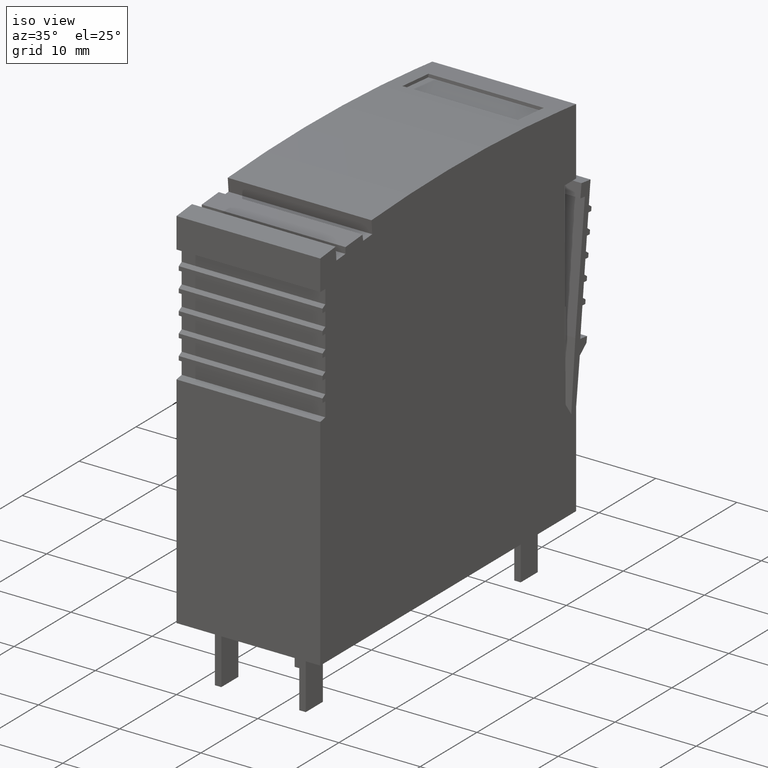
[diagram: clean part render]
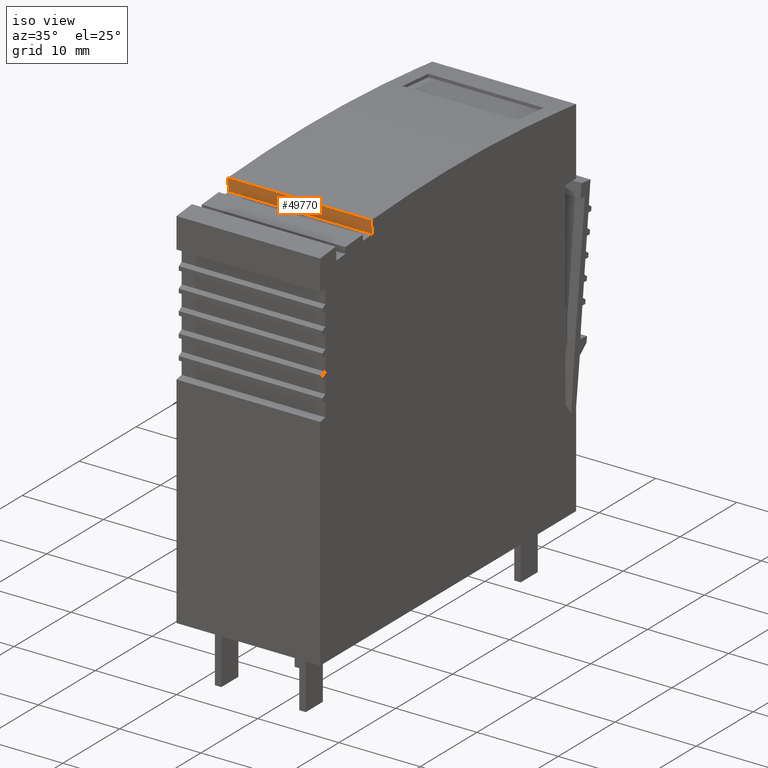
[diagram: same view with one face highlighted and labeled with its STEP entity id]
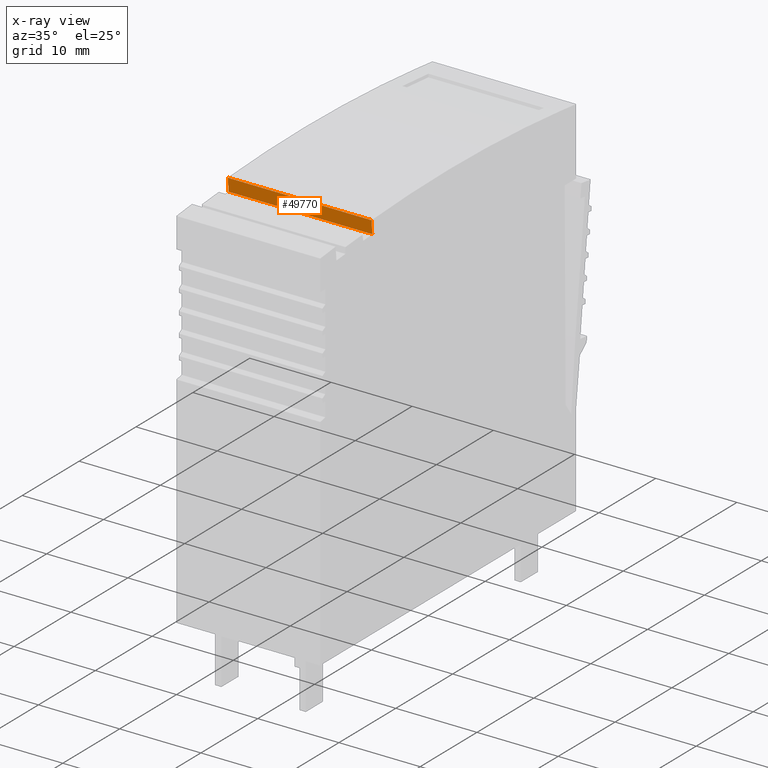
[diagram: x-ray of the same camera — body ghosted, the highlighted face saturated]
A machine part, iso view. The second image highlights one B-rep face of the part: STEP entity #49770.
The next image is the same camera in x-ray: the body ghosted, the highlighted face saturated — about 0% of this face is hidden behind the body in this view.
In plain terms, the highlighted planar face has unit normal (0, 0.9965, 0.0832).
Its self-contained STEP definition (entity closure, byte-faithful):
#4090=CARTESIAN_POINT('',(157.658757969417,101.479855868574,
-2.14452701533003));
#4100=VERTEX_POINT('',#4090);
#4130=CARTESIAN_POINT('',(152.27325486609,36.9601229990142,
-2.14452702076599));
#4140=DIRECTION('',(0.0831813617632818,0.996534425424032,
8.39607203001372E-11));
#4150=VECTOR('',#4140,1.);
#4160=LINE('',#4130,#4150);
#4170=CARTESIAN_POINT('',(157.525254614996,99.8804508363725,
-2.14452701546479));
#4180=VERTEX_POINT('',#4170);
#4190=EDGE_CURVE('',#4180,#4100,#4160,.T.);
#10760=CARTESIAN_POINT('',(157.52525461578,99.8804508379951,
-19.8445270162174));
#10770=VERTEX_POINT('',#10760);
#10800=CARTESIAN_POINT('',(152.273254866833,36.9601230005704,
-19.8445270204366));
#10810=DIRECTION('',(-0.0831813617632818,-0.996534425424032,
-8.39607203001372E-11));
#10820=VECTOR('',#10810,1.);
#10830=LINE('',#10800,#10820);
#10840=CARTESIAN_POINT('',(157.658757970188,101.479855870052,
-19.8445270160767));
#10850=VERTEX_POINT('',#10840);
#10860=EDGE_CURVE('',#10850,#10770,#10830,.T.);
#49440=CARTESIAN_POINT('',(157.65875796989,101.47985586948,
-12.9945270150365));
#49450=DIRECTION('',(-4.35918508913199E-11,-8.35001490403522E-11,1.));
#49460=VECTOR('',#49450,1.);
#49470=LINE('',#49440,#49460);
#49480=EDGE_CURVE('',#10850,#4100,#49470,.T.);
#49610=CARTESIAN_POINT('',(157.603582397075,100.818838110914,
-0.794527015367808));
#49620=DIRECTION('',(-0.996534425424032,0.0831813617632818,
-3.6495123976538E-11));
#49630=DIRECTION('',(0.0831813617632818,0.996534425424032,
9.12741733636863E-11));
#49640=AXIS2_PLACEMENT_3D('',#49610,#49620,#49630);
#49650=PLANE('',#49640);
#49660=ORIENTED_EDGE('',*,*,#49480,.T.);
#49670=ORIENTED_EDGE('',*,*,#10860,.F.);
#49680=CARTESIAN_POINT('',(157.525254615479,99.8804508373928,
-12.9945270151772));
#49690=DIRECTION('',(-4.39609574369474E-11,-8.79221417989464E-11,1.));
#49700=VECTOR('',#49690,1.);
#49710=LINE('',#49680,#49700);
#49720=EDGE_CURVE('',#10770,#4180,#49710,.T.);
#49730=ORIENTED_EDGE('',*,*,#49720,.F.);
#49740=ORIENTED_EDGE('',*,*,#4190,.F.);
#49750=EDGE_LOOP('',(#49740,#49730,#49670,#49660));
#49760=FACE_OUTER_BOUND('',#49750,.T.);
#49770=ADVANCED_FACE('',(#49760),#49650,.F.);